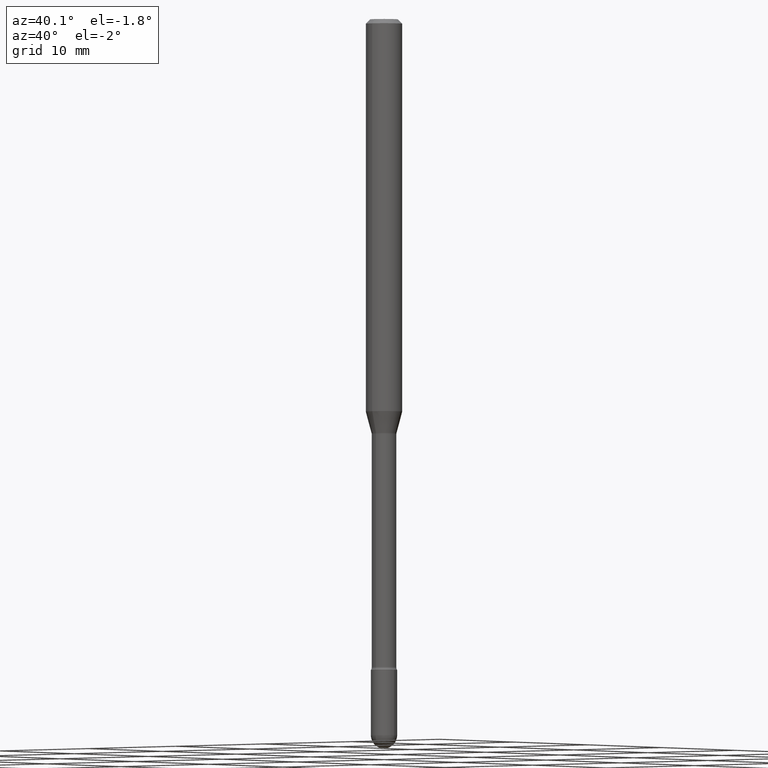
[diagram: clean part render]
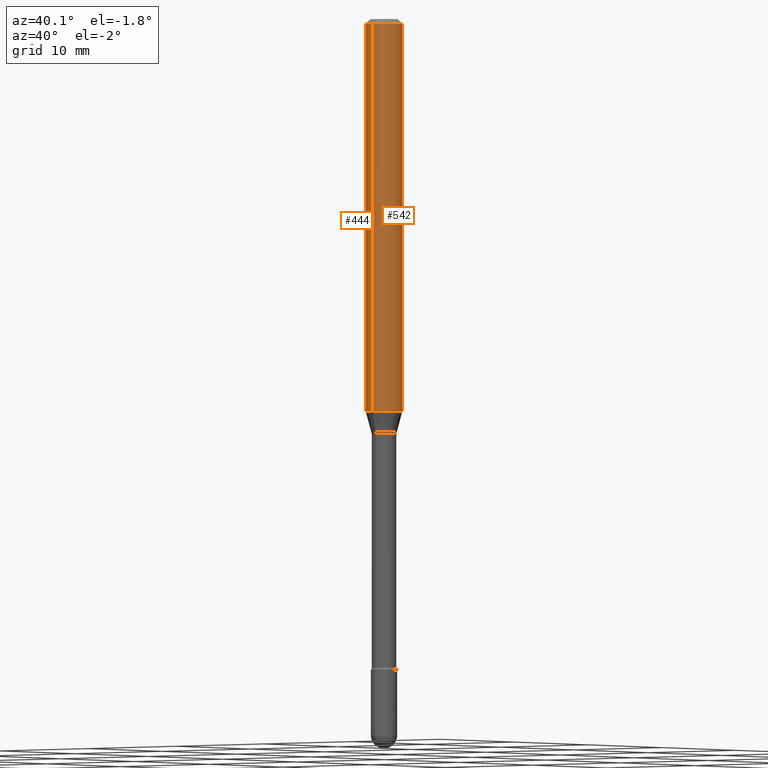
[diagram: same view with one multi-face feature highlighted, each face labeled with its STEP entity id]
A machine part, auxiliary view. The highlighted faces form ONE feature: a constant-radius fillet chain: 2 tangent blend faces with common blend radius 1.5875 mm. The faces share edges in the B-rep.
Their STEP definitions:
[1] entity #542 (Cylinder):
#15 = VERTEX_POINT ( 'NONE', #69 ) ;
#31 = CARTESIAN_POINT ( 'NONE',  ( -4.364351673553912750E-16, -0.06250000000000005551, -0.01499999999999986587 ) ) ;
#39 = DIRECTION ( 'NONE',  ( -2.445387915885210370E-29, 3.491597178356629868E-15, 1.000000000000000000 ) ) ;
#51 = VERTEX_POINT ( 'NONE', #462 ) ;
#61 = ORIENTED_EDGE ( 'NONE', *, *, #85, .F. ) ;
#69 = CARTESIAN_POINT ( 'NONE',  ( -4.364351673553584879E-16, -0.06250000000000466294, -1.344612573687108847 ) ) ;
#71 = CARTESIAN_POINT ( 'NONE',  ( 4.440892098500956497E-16, 0.06249999999999533706, -1.344612573687109514 ) ) ;
#85 = EDGE_CURVE ( 'NONE', #15, #528, #172, .T. ) ;
#129 = DIRECTION ( 'NONE',  ( -2.445387915885210370E-29, 3.491597178356629473E-15, 1.000000000000000000 ) ) ;
#152 = DIRECTION ( 'NONE',  ( -2.445387915885210370E-29, 3.491597178356629473E-15, 1.000000000000000000 ) ) ;
#158 = EDGE_LOOP ( 'NONE', ( #541, #543, #395, #61 ) ) ;
#160 = FACE_OUTER_BOUND ( 'NONE', #158, .T. ) ;
#172 = LINE ( 'NONE', #288, #254 ) ;
#177 = AXIS2_PLACEMENT_3D ( 'NONE', #258, #340, #433 ) ;
#222 = EDGE_CURVE ( 'NONE', #15, #532, #227, .T. ) ;
#227 = CIRCLE ( 'NONE', #425, 0.06250000000000000000 ) ;
#235 = CARTESIAN_POINT ( 'NONE',  ( 4.440892098500625669E-16, 0.06250000000000000000, 2.598485752439566965E-16 ) ) ;
#254 = VECTOR ( 'NONE', #129, 39.37007874015748143 ) ;
#258 = CARTESIAN_POINT ( 'NONE',  ( 3.668081873827835804E-31, -5.237395767534973718E-17, -0.01500000000000008271 ) ) ;
#270 = LINE ( 'NONE', #235, #517 ) ;
#288 = CARTESIAN_POINT ( 'NONE',  ( -4.364351673553916201E-16, -0.06250000000000000000, 6.962982225385354793E-16 ) ) ;
#300 = CIRCLE ( 'NONE', #177, 0.06250000000000000000 ) ;
#321 = EDGE_CURVE ( 'NONE', #528, #51, #300, .T. ) ;
#340 = DIRECTION ( 'NONE',  ( -2.445387915885210370E-29, 3.491597178356629868E-15, 1.000000000000000000 ) ) ;
#368 = CYLINDRICAL_SURFACE ( 'NONE', #448, 0.06250000000000000000 ) ;
#395 = ORIENTED_EDGE ( 'NONE', *, *, #321, .F. ) ;
#425 = AXIS2_PLACEMENT_3D ( 'NONE', #475, #39, #519 ) ;
#433 = DIRECTION ( 'NONE',  ( -6.982962677686265922E-15, -1.000000000000000000, 3.483106191921935554E-15 ) ) ;
#448 = AXIS2_PLACEMENT_3D ( 'NONE', #458, #469, #548 ) ;
#458 = CARTESIAN_POINT ( 'NONE',  ( -1.169113584055446105E-44, 1.669184350826100908E-30, 4.780733988912460139E-16 ) ) ;
#462 = CARTESIAN_POINT ( 'NONE',  ( 4.440892098500956497E-16, 0.06249999999999993755, -0.01500000000000030129 ) ) ;
#469 = DIRECTION ( 'NONE',  ( -2.445387915885210370E-29, 3.491597178356629868E-15, 1.000000000000000000 ) ) ;
#475 = CARTESIAN_POINT ( 'NONE',  ( 3.288099339241768682E-29, -4.694845468268757360E-15, -1.344612573687109069 ) ) ;
#477 = EDGE_CURVE ( 'NONE', #532, #51, #270, .T. ) ;
#517 = VECTOR ( 'NONE', #152, 39.37007874015748143 ) ;
#519 = DIRECTION ( 'NONE',  ( -6.982962677686265922E-15, -1.000000000000000000, 4.370956789862821150E-15 ) ) ;
#528 = VERTEX_POINT ( 'NONE', #31 ) ;
#532 = VERTEX_POINT ( 'NONE', #71 ) ;
#541 = ORIENTED_EDGE ( 'NONE', *, *, #222, .T. ) ;
#542 = ADVANCED_FACE ( 'NONE', ( #160 ), #368, .T. ) ;
#543 = ORIENTED_EDGE ( 'NONE', *, *, #477, .T. ) ;
#548 = DIRECTION ( 'NONE',  ( -6.982962677686265922E-15, -1.000000000000000000, 3.491597178356629868E-15 ) ) ;
[2] entity #444 (Cylinder):
#7 = AXIS2_PLACEMENT_3D ( 'NONE', #315, #411, #20 ) ;
#8 = CARTESIAN_POINT ( 'NONE',  ( 3.288099339241768682E-29, -4.694845468268757360E-15, -1.344612573687109069 ) ) ;
#15 = VERTEX_POINT ( 'NONE', #69 ) ;
#20 = DIRECTION ( 'NONE',  ( -6.982962677686265922E-15, -1.000000000000000000, 3.491597178356629868E-15 ) ) ;
#31 = CARTESIAN_POINT ( 'NONE',  ( -4.364351673553912750E-16, -0.06250000000000005551, -0.01499999999999986587 ) ) ;
#51 = VERTEX_POINT ( 'NONE', #462 ) ;
#66 = DIRECTION ( 'NONE',  ( -2.445387915885210370E-29, 3.491597178356629868E-15, 1.000000000000000000 ) ) ;
#69 = CARTESIAN_POINT ( 'NONE',  ( -4.364351673553584879E-16, -0.06250000000000466294, -1.344612573687108847 ) ) ;
#71 = CARTESIAN_POINT ( 'NONE',  ( 4.440892098500956497E-16, 0.06249999999999533706, -1.344612573687109514 ) ) ;
#72 = AXIS2_PLACEMENT_3D ( 'NONE', #8, #494, #199 ) ;
#85 = EDGE_CURVE ( 'NONE', #15, #528, #172, .T. ) ;
#94 = ORIENTED_EDGE ( 'NONE', *, *, #557, .F. ) ;
#106 = ORIENTED_EDGE ( 'NONE', *, *, #398, .T. ) ;
#129 = DIRECTION ( 'NONE',  ( -2.445387915885210370E-29, 3.491597178356629473E-15, 1.000000000000000000 ) ) ;
#149 = FACE_OUTER_BOUND ( 'NONE', #271, .T. ) ;
#152 = DIRECTION ( 'NONE',  ( -2.445387915885210370E-29, 3.491597178356629473E-15, 1.000000000000000000 ) ) ;
#172 = LINE ( 'NONE', #288, #254 ) ;
#199 = DIRECTION ( 'NONE',  ( -6.982962677686265922E-15, -1.000000000000000000, 4.370956789862821150E-15 ) ) ;
#225 = CYLINDRICAL_SURFACE ( 'NONE', #7, 0.06250000000000000000 ) ;
#235 = CARTESIAN_POINT ( 'NONE',  ( 4.440892098500625669E-16, 0.06250000000000000000, 2.598485752439566965E-16 ) ) ;
#254 = VECTOR ( 'NONE', #129, 39.37007874015748143 ) ;
#270 = LINE ( 'NONE', #235, #517 ) ;
#271 = EDGE_LOOP ( 'NONE', ( #520, #106, #326, #94 ) ) ;
#288 = CARTESIAN_POINT ( 'NONE',  ( -4.364351673553916201E-16, -0.06250000000000000000, 6.962982225385354793E-16 ) ) ;
#292 = AXIS2_PLACEMENT_3D ( 'NONE', #546, #66, #461 ) ;
#315 = CARTESIAN_POINT ( 'NONE',  ( -1.169113584055446105E-44, 1.669184350826100908E-30, 4.780733988912460139E-16 ) ) ;
#326 = ORIENTED_EDGE ( 'NONE', *, *, #85, .T. ) ;
#363 = CIRCLE ( 'NONE', #72, 0.06250000000000000000 ) ;
#398 = EDGE_CURVE ( 'NONE', #532, #15, #363, .T. ) ;
#400 = CIRCLE ( 'NONE', #292, 0.06250000000000000000 ) ;
#411 = DIRECTION ( 'NONE',  ( -2.445387915885210370E-29, 3.491597178356629868E-15, 1.000000000000000000 ) ) ;
#444 = ADVANCED_FACE ( 'NONE', ( #149 ), #225, .T. ) ;
#461 = DIRECTION ( 'NONE',  ( -6.982962677686265922E-15, -1.000000000000000000, 3.483106191921935554E-15 ) ) ;
#462 = CARTESIAN_POINT ( 'NONE',  ( 4.440892098500956497E-16, 0.06249999999999993755, -0.01500000000000030129 ) ) ;
#477 = EDGE_CURVE ( 'NONE', #532, #51, #270, .T. ) ;
#494 = DIRECTION ( 'NONE',  ( -2.445387915885210370E-29, 3.491597178356629868E-15, 1.000000000000000000 ) ) ;
#517 = VECTOR ( 'NONE', #152, 39.37007874015748143 ) ;
#520 = ORIENTED_EDGE ( 'NONE', *, *, #477, .F. ) ;
#528 = VERTEX_POINT ( 'NONE', #31 ) ;
#532 = VERTEX_POINT ( 'NONE', #71 ) ;
#546 = CARTESIAN_POINT ( 'NONE',  ( 3.668081873827835804E-31, -5.237395767534973718E-17, -0.01500000000000008271 ) ) ;
#557 = EDGE_CURVE ( 'NONE', #51, #528, #400, .T. ) ;